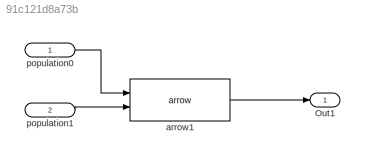
MODEL slx_91c121d8a73b
KIND model
CONFIG AbsTol = auto
CONFIG EnableMultiTasking = on
CONFIG FixedStep = 0.200000
CONFIG MaxStep = auto
CONFIG MinStep = auto
CONFIG RelTol = 1e-3
CONFIG SampleTimeConstraint = Unconstrained
CONFIG Solver = FixedStepDiscrete
CONFIG SolverName = FixedStepDiscrete
CONFIG StartTime = 0.0
CONFIG StopTime = 10.0
BLOCK [Outport] Out1
  IconDisplay = Port number
BLOCK [Reference] arrow1  REF=CoCoSimSpecification_r2015a/arrow
  Ports = [2, 1]
  SourceBlock = CoCoSimSpecification_r2015a/arrow
  SourceType = ArrowOperator
BLOCK [Inport] population0
  IconDisplay = Port number
BLOCK [Inport] population1
  IconDisplay = Port number
  Port = 2
LINE arrow1:1 -> Out1:1
LINE population0:1 -> arrow1:1
LINE population1:1 -> arrow1:2
